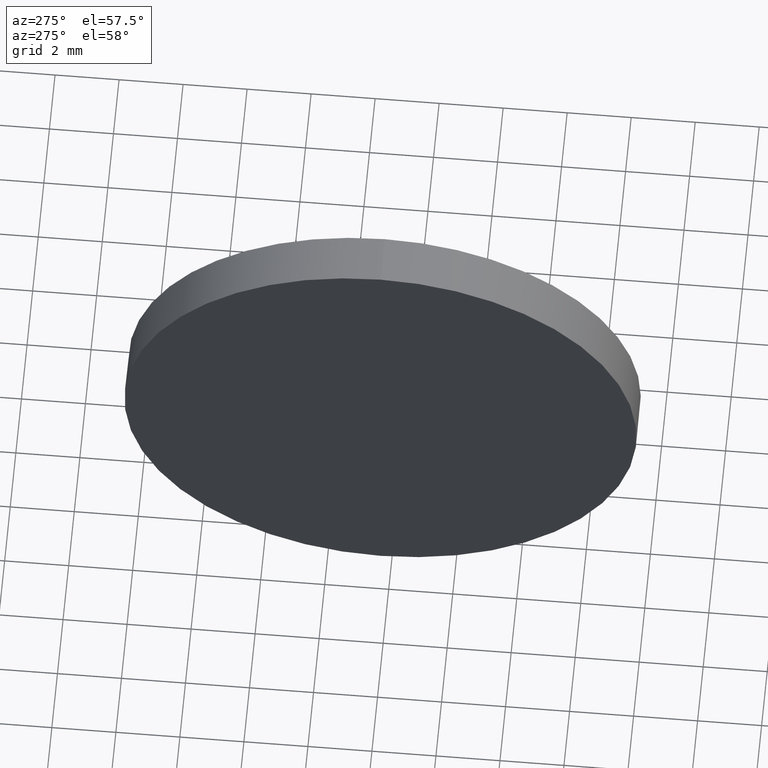
[diagram: clean part render]
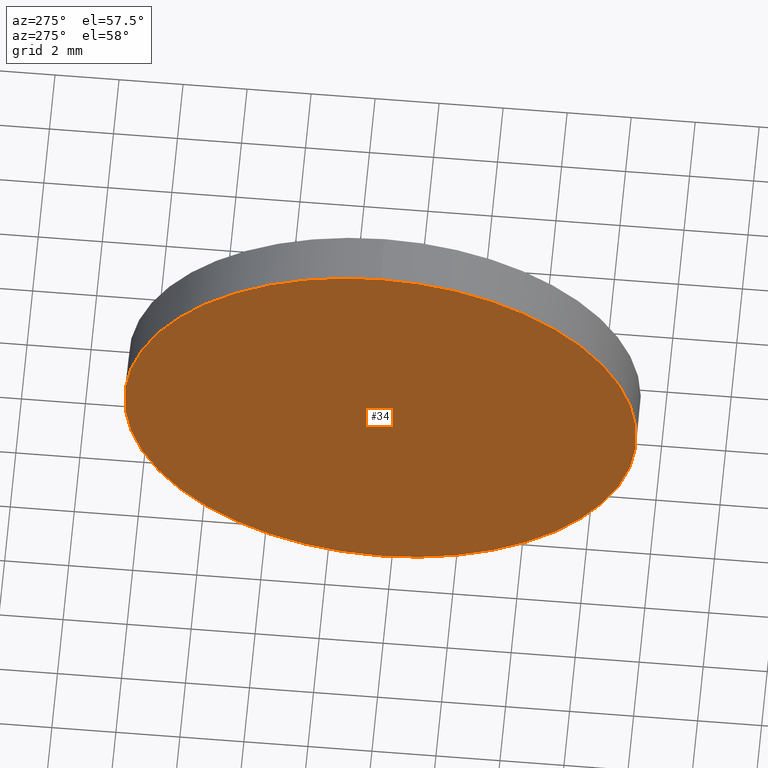
[diagram: same view with one face highlighted and labeled with its STEP entity id]
A machine part, auxiliary view. The second image highlights one B-rep face of the part: STEP entity #34.
In plain terms, the highlighted planar face has unit normal (1, 0, 0).
Its self-contained STEP definition (entity closure, byte-faithful):
#8 = DIRECTION ( 'NONE',  ( 1.000000000000000000, 0.0000000000000000000, 0.0000000000000000000 ) ) ;
#9 = PLANE ( 'NONE',  #124 ) ;
#14 = VERTEX_POINT ( 'NONE', #147 ) ;
#19 = CARTESIAN_POINT ( 'NONE',  ( 644.9878629679331000, 90.34373980560192800, 0.0000000000000000000 ) ) ;
#29 = ORIENTED_EDGE ( 'NONE', *, *, #38, .T. ) ;
#30 = EDGE_CURVE ( 'NONE', #14, #65, #144, .T. ) ;
#34 = ADVANCED_FACE ( 'NONE', ( #150 ), #9, .F. ) ;
#38 = EDGE_CURVE ( 'NONE', #65, #14, #61, .T. ) ;
#53 = AXIS2_PLACEMENT_3D ( 'NONE', #158, #186, #54 ) ;
#54 = DIRECTION ( 'NONE',  ( 0.0000000000000000000, 0.0000000000000000000, 1.000000000000000000 ) ) ;
#61 = CIRCLE ( 'NONE', #85, 8.000000000000007100 ) ;
#65 = VERTEX_POINT ( 'NONE', #90 ) ;
#74 = CARTESIAN_POINT ( 'NONE',  ( 644.9878629679331000, 90.34373980560192800, 0.0000000000000000000 ) ) ;
#85 = AXIS2_PLACEMENT_3D ( 'NONE', #74, #170, #89 ) ;
#89 = DIRECTION ( 'NONE',  ( 0.0000000000000000000, 0.0000000000000000000, 1.000000000000000000 ) ) ;
#90 = CARTESIAN_POINT ( 'NONE',  ( 644.9878629679331000, 90.34373980560192800, -8.000000000000007100 ) ) ;
#103 = EDGE_LOOP ( 'NONE', ( #122, #29 ) ) ;
#122 = ORIENTED_EDGE ( 'NONE', *, *, #30, .T. ) ;
#124 = AXIS2_PLACEMENT_3D ( 'NONE', #19, #8, #126 ) ;
#126 = DIRECTION ( 'NONE',  ( 0.0000000000000000000, 0.0000000000000000000, -1.000000000000000000 ) ) ;
#144 = CIRCLE ( 'NONE', #53, 8.000000000000007100 ) ;
#147 = CARTESIAN_POINT ( 'NONE',  ( 644.9878629679331000, 90.34373980560192800, 8.000000000000007100 ) ) ;
#150 = FACE_OUTER_BOUND ( 'NONE', #103, .T. ) ;
#158 = CARTESIAN_POINT ( 'NONE',  ( 644.9878629679331000, 90.34373980560192800, 0.0000000000000000000 ) ) ;
#170 = DIRECTION ( 'NONE',  ( -1.000000000000000000, -0.0000000000000000000, -0.0000000000000000000 ) ) ;
#186 = DIRECTION ( 'NONE',  ( -1.000000000000000000, -0.0000000000000000000, -0.0000000000000000000 ) ) ;